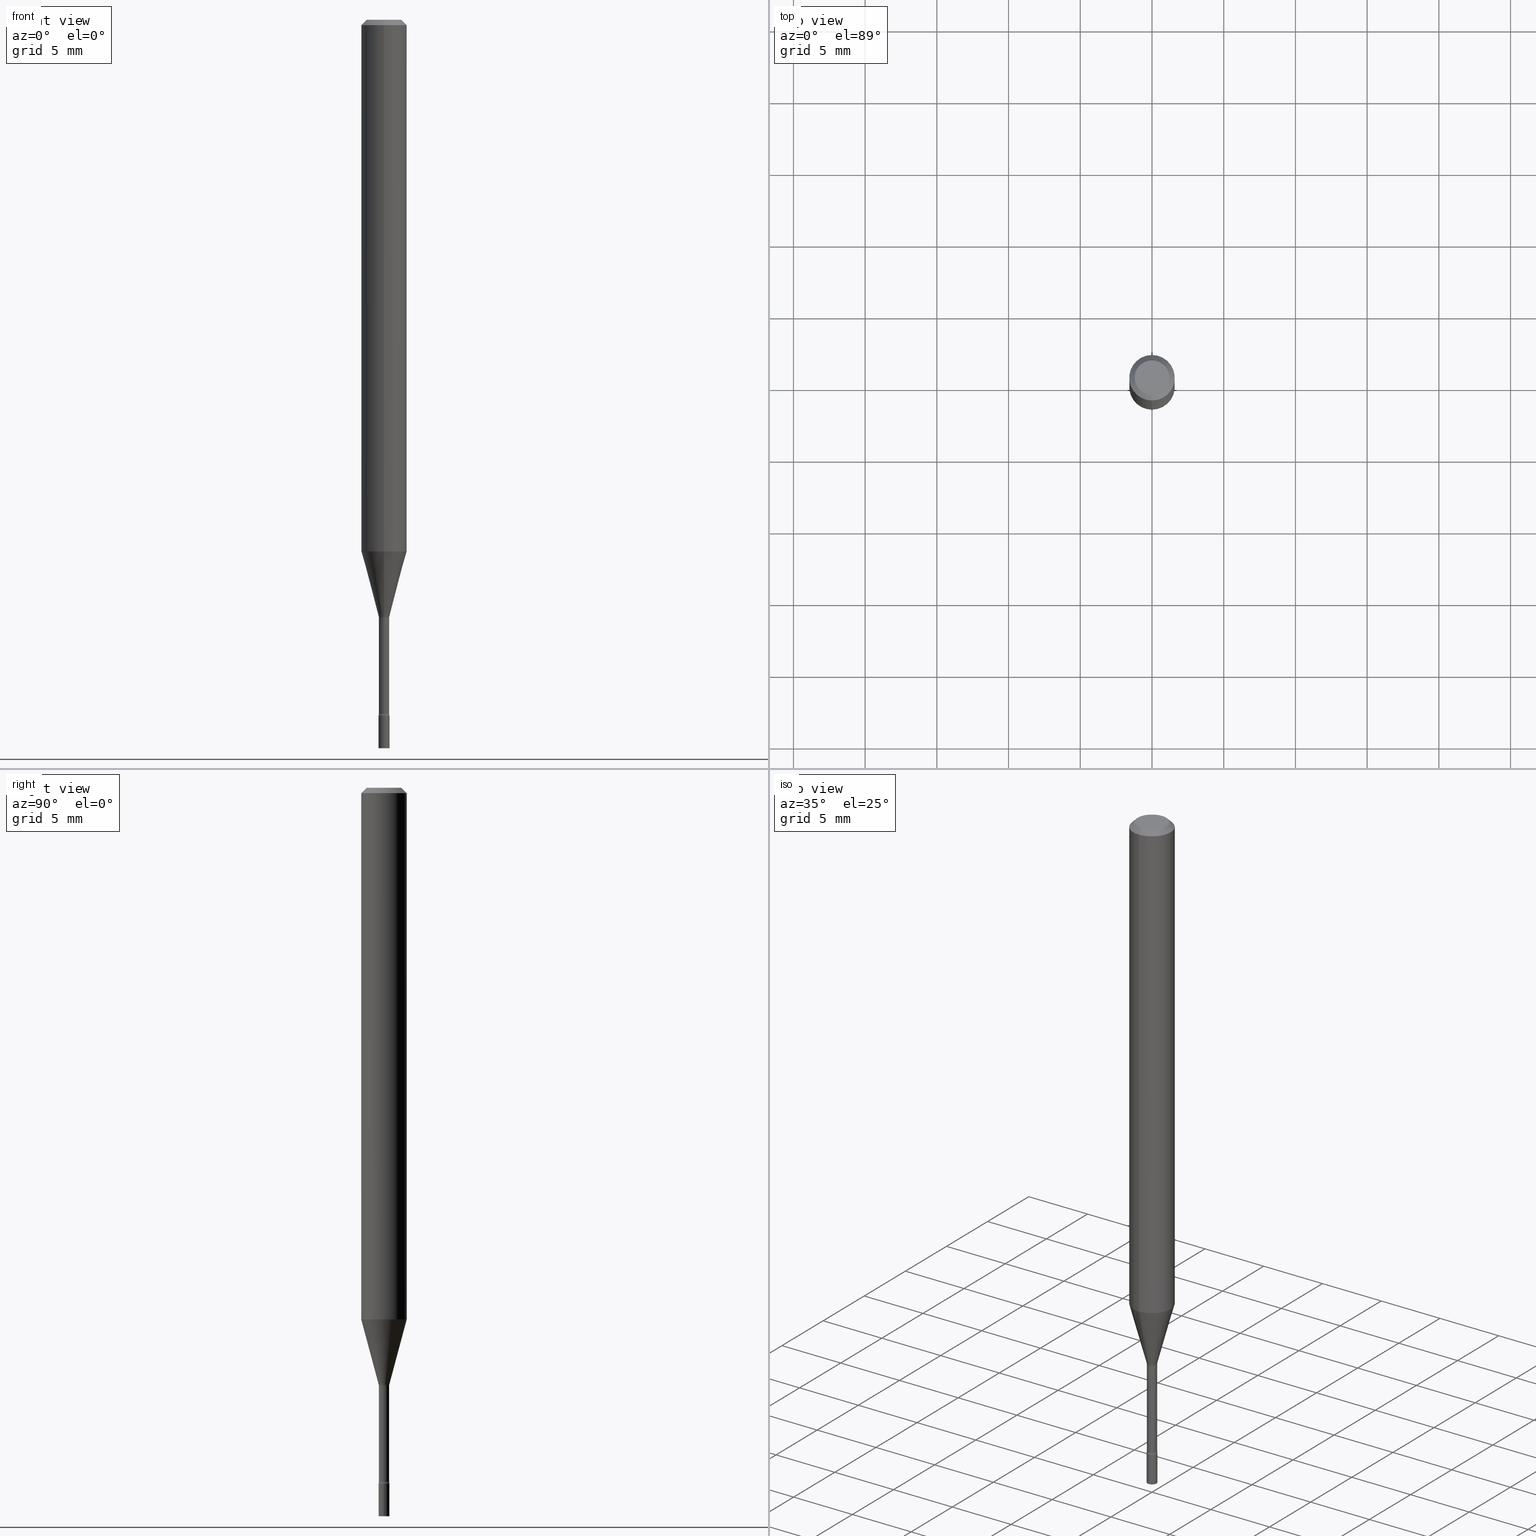
[diagram: canonical four-view strip — front | top / right | iso, engineering-drawing reading convention]
A machine part, canonical four-view strip (front | top / right | iso — engineering-drawing reading convention). The complete STEP part file that produces these views, byte-faithful:
ISO-10303-21;
HEADER;
FILE_DESCRIPTION (( 'STEP AP203' ),
    '1' );
FILE_NAME ('03431.STEP',
    '2024-03-08T21:21:12',
    ( '' ),
    ( '' ),
    'SwSTEP 2.0',
    'SolidWorks 2023',
    '' );
FILE_SCHEMA (( 'CONFIG_CONTROL_DESIGN' ));
ENDSEC;

DATA;
#1 = EDGE_CURVE ( 'NONE', #231, #144, #323, .T. ) ;
#2 = DIRECTION ( 'NONE',  ( -2.445538114681118856E-29, 3.491382085132104190E-15, 1.000000000000000000 ) ) ;
#3 = FACE_OUTER_BOUND ( 'NONE', #319, .T. ) ;
#4 = DIRECTION ( 'NONE',  ( -2.445538114681118856E-29, 3.491382085132104190E-15, 1.000000000000000000 ) ) ;
#5 = ADVANCED_FACE ( 'NONE', ( #302 ), #463, .F. ) ;
#6 = CIRCLE ( 'NONE', #324, 0.01499999999999999944 ) ;
#7 = APPLICATION_CONTEXT ( 'configuration controlled 3d designs of mechanical parts and assemblies' ) ;
#8 = APPROVAL_STATUS ( 'not_yet_approved' ) ;
#9 = EDGE_CURVE ( 'NONE', #383, #349, #507, .T. ) ;
#10 = AXIS2_PLACEMENT_3D ( 'NONE', #466, #346, #257 ) ;
#11 = CARTESIAN_POINT ( 'NONE',  ( 1.065814103640616653E-16, 0.01499999999999332249, -1.910000000000000142 ) ) ;
#12 = APPROVAL_ROLE ( '' ) ;
#13 = ORIENTED_EDGE ( 'NONE', *, *, #190, .T. ) ;
#14 =( LENGTH_UNIT ( ) NAMED_UNIT ( * ) SI_UNIT ( $, .METRE. ) );
#15 = DIRECTION ( 'NONE',  ( -2.445538114681118856E-29, 3.491382085132104190E-15, 1.000000000000000000 ) ) ;
#16 = CALENDAR_DATE ( 2024, 8, 3 ) ;
#17 = EDGE_LOOP ( 'NONE', ( #13, #114, #348, #449 ) ) ;
#18 = CARTESIAN_POINT ( 'NONE',  ( 4.015511926088179569E-29, -5.732761357189744798E-15, -1.641974787463811314 ) ) ;
#19 = EDGE_CURVE ( 'NONE', #337, #520, #46, .T. ) ;
#20 = VECTOR ( 'NONE', #230, 39.37007874015748143 ) ;
#21 = DIRECTION ( 'NONE',  ( -6.982962677686264344E-15, -1.000000000000000000, 0.000000000000000000 ) ) ;
#22 = LINE ( 'NONE', #182, #98 ) ;
#23 = UNCERTAINTY_MEASURE_WITH_UNIT (LENGTH_MEASURE( 1.000000000000000082E-05 ), #488, 'distance_accuracy_value', 'NONE');
#24 = EDGE_LOOP ( 'NONE', ( #391, #457, #234, #471 ) ) ;
#25 = EDGE_CURVE ( 'NONE', #337, #144, #22, .T. ) ;
#26 = FACE_OUTER_BOUND ( 'NONE', #106, .T. ) ;
#27 = ORIENTED_EDGE ( 'NONE', *, *, #25, .F. ) ;
#28 = CARTESIAN_POINT ( 'NONE',  ( 4.015398123285219661E-29, -5.732924329280836621E-15, -1.641974787463811314 ) ) ;
#29 = CLOSED_SHELL ( 'NONE', ( #438, #36, #491, #107 ) ) ;
#30 = CARTESIAN_POINT ( 'NONE',  ( -1.020288540047823140E-16, -0.01461111260566962632, -1.638092501787273392 ) ) ;
#31 = AXIS2_PLACEMENT_3D ( 'NONE', #517, #452, #240 ) ;
#32 = VERTEX_POINT ( 'NONE', #377 ) ;
#33 = DIRECTION ( 'NONE',  ( -6.982962677686265922E-15, -1.000000000000000000, 0.000000000000000000 ) ) ;
#34 = PERSON ( 'UNSPECIFIED', 'UNSPECIFIED', 'UNSPECIFIED', ('UNSPECIFIED'), ('UNSPECIFIED'), ('UNSPECIFIED') ) ;
#35 = DIRECTION ( 'NONE',  ( -2.445538114681118856E-29, 3.491382085132104190E-15, 1.000000000000000000 ) ) ;
#36 = ADVANCED_FACE ( 'NONE', ( #68 ), #138, .T. ) ;
#37 = EDGE_LOOP ( 'NONE', ( #396, #464, #41, #176 ) ) ;
#38 = CC_DESIGN_PERSON_AND_ORGANIZATION_ASSIGNMENT ( #174, #45, ( #432 ) ) ;
#39 = VECTOR ( 'NONE', #213, 39.37007874015748143 ) ;
#40 = AXIS2_PLACEMENT_3D ( 'NONE', #359, #321, #451 ) ;
#41 = ORIENTED_EDGE ( 'NONE', *, *, #291, .T. ) ;
#42 = DIRECTION ( 'NONE',  ( -2.445538114681118856E-29, 3.491382085132104190E-15, 1.000000000000000000 ) ) ;
#43 = CARTESIAN_POINT ( 'NONE',  ( 4.364351673553919652E-16, 0.06249999999999995143, -0.01500000000000024751 ) ) ;
#44 = DIRECTION ( 'NONE',  ( -2.445538114681118856E-29, 3.491382085132104190E-15, 1.000000000000000000 ) ) ;
#45 = PERSON_AND_ORGANIZATION_ROLE ( 'design_owner' ) ;
#46 = CIRCLE ( 'NONE', #197, 0.01499999999999999424 ) ;
#47 = CC_DESIGN_APPROVAL ( #429, ( #78 ) ) ;
#48 = CARTESIAN_POINT ( 'NONE',  ( -3.773273898774340269E-16, -0.04749999999999999362, 1.369220235646314872E-16 ) ) ;
#49 = CARTESIAN_POINT ( 'NONE',  ( 0.000000000000000000, 0.000000000000000000, 0.000000000000000000 ) ) ;
#50 = CC_DESIGN_DATE_AND_TIME_ASSIGNMENT ( #215, #308, ( #78 ) ) ;
#51 = CIRCLE ( 'NONE', #10, 0.01499999999999999944 ) ;
#52 = CIRCLE ( 'NONE', #249, 0.01409999999999999448 ) ;
#53 = DIRECTION ( 'NONE',  ( 6.982962677686265922E-15, 1.000000000000000000, -3.483106191921935554E-15 ) ) ;
#54 = COORDINATED_UNIVERSAL_TIME_OFFSET ( 5, 0, .BEHIND. ) ;
#55 = ORIENTED_EDGE ( 'NONE', *, *, #88, .T. ) ;
#56 = EDGE_CURVE ( 'NONE', #276, #81, #360, .T. ) ;
#57 = DIRECTION ( 'NONE',  ( -2.445538114681118856E-29, 3.491382085132104190E-15, 1.000000000000000000 ) ) ;
#58 = MANIFOLD_SOLID_BREP ( 'Body-Move/Copy2[2]', #408 ) ;
#59 = ORIENTED_EDGE ( 'NONE', *, *, #246, .F. ) ;
#60 = DIRECTION ( 'NONE',  ( 7.105427357600999492E-15, 1.000000000000000000, 0.000000000000000000 ) ) ;
#61 = DIRECTION ( 'NONE',  ( -4.851104656540964275E-15, -0.7071067811865500152, -0.7071067811865450192 ) ) ;
#62 = SECURITY_CLASSIFICATION_LEVEL ( 'unclassified' ) ;
#63 = AXIS2_PLACEMENT_3D ( 'NONE', #262, #248, #53 ) ;
#64 = AXIS2_PLACEMENT_3D ( 'NONE', #511, #395, #173 ) ;
#65 = DIRECTION ( 'NONE',  ( 7.105427357601001859E-15, 1.000000000000000000, 0.000000000000000000 ) ) ;
#66 = COORDINATED_UNIVERSAL_TIME_OFFSET ( 5, 0, .BEHIND. ) ;
#67 = ADVANCED_FACE ( 'NONE', ( #26 ), #388, .F. ) ;
#68 = FACE_OUTER_BOUND ( 'NONE', #434, .T. ) ;
#69 = ORIENTED_EDGE ( 'NONE', *, *, #175, .F. ) ;
#70 = CARTESIAN_POINT ( 'NONE',  ( -2.032042139206301791E-16, -0.02910000000000572892, -1.641974787463811314 ) ) ;
#71 = LINE ( 'NONE', #439, #390 ) ;
#72 = EDGE_LOOP ( 'NONE', ( #430, #423, #495, #345 ) ) ;
#73 = AXIS2_PLACEMENT_3D ( 'NONE', #499, #221, #177 ) ;
#74 = CARTESIAN_POINT ( 'NONE',  ( 0.01499999999999999944, -1.047444401652940105E-16, 7.314265163693904390E-31 ) ) ;
#75 = ORGANIZATION ( 'UNSPECIFIED', 'UNSPECIFIED', '' ) ;
#76 = EDGE_LOOP ( 'NONE', ( #400, #120, #225, #266 ) ) ;
#77 = DIRECTION ( 'NONE',  ( 1.839019923739597160E-15, 0.2588190451025245142, 0.9659258262890673130 ) ) ;
#78 = PRODUCT_DEFINITION ( 'UNKNOWN', '', #118, #160 ) ;
#79 = CARTESIAN_POINT ( 'NONE',  ( 4.006017648494126314E-29, -5.719206814529315769E-15, -1.638092501787273392 ) ) ;
#80 = ORIENTED_EDGE ( 'NONE', *, *, #149, .T. ) ;
#81 = VERTEX_POINT ( 'NONE', #304 ) ;
#82 = AXIS2_PLACEMENT_3D ( 'NONE', #109, #467, #472 ) ;
#83 = CIRCLE ( 'NONE', #172, 0.01499999999999999944 ) ;
#84 = CARTESIAN_POINT ( 'NONE',  ( 0.000000000000000000, 0.000000000000000000, 0.000000000000000000 ) ) ;
#85 = CARTESIAN_POINT ( 'NONE',  ( 0.000000000000000000, 0.000000000000000000, 0.000000000000000000 ) ) ;
#86 = DIRECTION ( 'NONE',  ( -2.445538114681118856E-29, 3.491382085132104190E-15, 1.000000000000000000 ) ) ;
#87 = APPLICATION_PROTOCOL_DEFINITION ( 'international standard', 'config_control_design', 1994, #137 ) ;
#88 = EDGE_CURVE ( 'NONE', #349, #383, #328, .T. ) ;
#89 = CYLINDRICAL_SURFACE ( 'NONE', #470, 0.01499999999999999944 ) ;
#90 = CIRCLE ( 'NONE', #356, 0.01410000000000004479 ) ;
#91 = CALENDAR_DATE ( 2024, 8, 3 ) ;
#92 = CC_DESIGN_PERSON_AND_ORGANIZATION_ASSIGNMENT ( #334, #223, ( #476 ) ) ;
#93 = CARTESIAN_POINT ( 'NONE',  ( 3.316907271900976096E-16, 0.04749999999999999362, -1.802999617833466869E-16 ) ) ;
#94 = EDGE_LOOP ( 'NONE', ( #263, #55, #135, #216 ) ) ;
#95 = CARTESIAN_POINT ( 'NONE',  ( -1.020288540047823140E-16, -0.01461111260566962632, -1.638092501787273392 ) ) ;
#96 = DIRECTION ( 'NONE',  ( -2.445538114681118576E-29, 3.491382085132104585E-15, 1.000000000000000000 ) ) ;
#97 = CYLINDRICAL_SURFACE ( 'NONE', #307, 0.01410000000000002050 ) ;
#98 = VECTOR ( 'NONE', #502, 39.37007874015748143 ) ;
#99 = ORIENTED_EDGE ( 'NONE', *, *, #115, .T. ) ;
#100 = ADVANCED_FACE ( 'NONE', ( #494 ), #518, .T. ) ;
#101 = DIRECTION ( 'NONE',  ( -6.982962677686265922E-15, -1.000000000000000000, 4.370956789862821150E-15 ) ) ;
#102 = APPROVAL_DATE_TIME ( #303, #500 ) ;
#103 = ORIENTED_EDGE ( 'NONE', *, *, #9, .T. ) ;
#104 = ADVANCED_FACE ( 'NONE', ( #283 ), #154, .T. ) ;
#105 = CALENDAR_DATE ( 2024, 8, 3 ) ;
#106 = EDGE_LOOP ( 'NONE', ( #480, #443, #497, #376 ) ) ;
#107 = ADVANCED_FACE ( 'NONE', ( #474 ), #513, .T. ) ;
#108 = CIRCLE ( 'NONE', #309, 0.06250000000000000000 ) ;
#109 = CARTESIAN_POINT ( 'NONE',  ( 3.568941879278567028E-29, -5.095213877627770922E-15, -1.459368740913666640 ) ) ;
#110 = CARTESIAN_POINT ( 'NONE',  ( -4.287811248607203282E-16, -0.06250000000000005551, -0.01499999999999981209 ) ) ;
#111 = EDGE_LOOP ( 'NONE', ( #27, #226, #516, #258 ) ) ;
#112 = ORIENTED_EDGE ( 'NONE', *, *, #167, .F. ) ;
#113 = DIRECTION ( 'NONE',  ( 1.000000000000000000, -6.982962677686268288E-15, 0.000000000000000000 ) ) ;
#114 = ORIENTED_EDGE ( 'NONE', *, *, #306, .T. ) ;
#115 = EDGE_CURVE ( 'NONE', #231, #276, #282, .T. ) ;
#116 = ORIENTED_EDGE ( 'NONE', *, *, #9, .F. ) ;
#117 = APPROVAL_PERSON_ORGANIZATION ( #132, #500, #12 ) ;
#118 = PRODUCT_DEFINITION_FORMATION_WITH_SPECIFIED_SOURCE ( 'ANY', '', #432, .NOT_KNOWN. ) ;
#119 = CARTESIAN_POINT ( 'NONE',  ( 3.668307172021685729E-31, -5.237073127698167330E-17, -0.01500000000000003067 ) ) ;
#120 = ORIENTED_EDGE ( 'NONE', *, *, #417, .T. ) ;
#121 = CARTESIAN_POINT ( 'NONE',  ( 3.840629472727447874E-16, 0.04749999999999999362, -1.947592745229183872E-16 ) ) ;
#122 = CARTESIAN_POINT ( 'NONE',  ( 4.440892098500625669E-16, 0.06250000000000000000, -2.182113803207564873E-16 ) ) ;
#123 = EDGE_CURVE ( 'NONE', #141, #437, #51, .T. ) ;
#124 = AXIS2_PLACEMENT_3D ( 'NONE', #406, #44, #487 ) ;
#125 = CARTESIAN_POINT ( 'NONE',  ( -9.845977375537648674E-17, -0.01410000000000002050, 4.922848740036274036E-17 ) ) ;
#126 = APPROVAL_ROLE ( '' ) ;
#127 = COORDINATED_UNIVERSAL_TIME_OFFSET ( 5, 0, .BEHIND. ) ;
#128 = AXIS2_PLACEMENT_3D ( 'NONE', #150, #318, #300 ) ;
#129 = AXIS2_PLACEMENT_3D ( 'NONE', #514, #274, #146 ) ;
#130 = EDGE_CURVE ( 'NONE', #144, #81, #427, .T. ) ;
#131 = ADVANCED_FACE ( 'NONE', ( #142 ), #134, .F. ) ;
#132 = PERSON_AND_ORGANIZATION ( #34, #75 ) ;
#133 = CARTESIAN_POINT ( 'NONE',  ( 4.006017648494126314E-29, -5.719206814529315769E-15, -1.638092501787273392 ) ) ;
#134 = TOROIDAL_SURFACE ( 'NONE', #339, 0.02910000000000003903, 0.01499999999999999424 ) ;
#135 = ORIENTED_EDGE ( 'NONE', *, *, #175, .T. ) ;
#136 = CARTESIAN_POINT ( 'NONE',  ( 0.000000000000000000, 0.000000000000000000, 0.000000000000000000 ) ) ;
#137 = APPLICATION_CONTEXT ( 'configuration controlled 3d designs of mechanical parts and assemblies' ) ;
#138 = PLANE ( 'NONE',  #153 ) ;
#139 = DIRECTION ( 'NONE',  ( -2.438088387897960049E-29, 3.491481338843145188E-15, 1.000000000000000000 ) ) ;
#140 = PERSON_AND_ORGANIZATION_ROLE ( 'creator' ) ;
#141 = VERTEX_POINT ( 'NONE', #416 ) ;
#142 = FACE_OUTER_BOUND ( 'NONE', #24, .T. ) ;
#143 = CIRCLE ( 'NONE', #410, 0.01499999999999999944 ) ;
#144 = VERTEX_POINT ( 'NONE', #199 ) ;
#145 = LOCAL_TIME ( 16, 21, 12.00000000000000000, #66 ) ;
#146 = DIRECTION ( 'NONE',  ( 6.982962677686265922E-15, 1.000000000000000000, -3.483106191921935554E-15 ) ) ;
#147 = ORIENTED_EDGE ( 'NONE', *, *, #350, .F. ) ;
#148 = ORIENTED_EDGE ( 'NONE', *, *, #123, .T. ) ;
#149 = EDGE_CURVE ( 'NONE', #349, #315, #444, .T. ) ;
#150 = CARTESIAN_POINT ( 'NONE',  ( 1.047444401653428952E-16, 0.01499999999999301718, -2.000000000000000000 ) ) ;
#151 = DIRECTION ( 'NONE',  ( -6.982962677686266711E-15, -1.000000000000000000, 0.000000000000000000 ) ) ;
#152 = ORIENTED_EDGE ( 'NONE', *, *, #88, .F. ) ;
#153 = AXIS2_PLACEMENT_3D ( 'NONE', #385, #139, #506 ) ;
#154 = CYLINDRICAL_SURFACE ( 'NONE', #469, 0.01410000000000002050 ) ;
#155 = AXIS2_PLACEMENT_3D ( 'NONE', #79, #2, #447 ) ;
#156 = DIRECTION ( 'NONE',  ( -2.445468806185136597E-29, 3.491481338843145583E-15, 1.000000000000000000 ) ) ;
#157 = ORIENTED_EDGE ( 'NONE', *, *, #246, .T. ) ;
#158 = ADVANCED_FACE ( 'NONE', ( #259 ), #496, .T. ) ;
#159 = DIRECTION ( 'NONE',  ( -2.445538114681118856E-29, 3.491382085132104190E-15, 1.000000000000000000 ) ) ;
#160 = DESIGN_CONTEXT ( 'detailed design', #7, 'design' ) ;
#161 = DIRECTION ( 'NONE',  ( -2.445538114681118856E-29, 3.491382085132104190E-15, 1.000000000000000000 ) ) ;
#162 = FACE_OUTER_BOUND ( 'NONE', #37, .T. ) ;
#163 = FACE_OUTER_BOUND ( 'NONE', #265, .T. ) ;
#164 = VECTOR ( 'NONE', #96, 39.37007874015748143 ) ;
#165 = DIRECTION ( 'NONE',  ( -6.982962677686265922E-15, -1.000000000000000000, 3.483106191921935554E-15 ) ) ;
#166 = LOCAL_TIME ( 16, 21, 12.00000000000000000, #219 ) ;
#167 = EDGE_CURVE ( 'NONE', #271, #373, #295, .T. ) ;
#168 = PLANE ( 'NONE',  #347 ) ;
#169 = ADVANCED_FACE ( 'NONE', ( #433 ), #401, .T. ) ;
#170 = APPROVAL_DATE_TIME ( #287, #429 ) ;
#171 = APPLICATION_PROTOCOL_DEFINITION ( 'international standard', 'config_control_design', 1994, #7 ) ;
#172 = AXIS2_PLACEMENT_3D ( 'NONE', #519, #156, #479 ) ;
#173 = DIRECTION ( 'NONE',  ( -6.982962677686265922E-15, -1.000000000000000000, 3.483106191921935554E-15 ) ) ;
#174 = PERSON_AND_ORGANIZATION ( #34, #75 ) ;
#175 = EDGE_CURVE ( 'NONE', #383, #373, #460, .T. ) ;
#176 = ORIENTED_EDGE ( 'NONE', *, *, #389, .F. ) ;
#177 = DIRECTION ( 'NONE',  ( -6.982962677686265922E-15, -1.000000000000000000, 0.000000000000000000 ) ) ;
#178 = EDGE_LOOP ( 'NONE', ( #59, #99, #227, #152 ) ) ;
#179 = AXIS2_PLACEMENT_3D ( 'NONE', #28, #254, #424 ) ;
#180 = CC_DESIGN_APPROVAL ( #500, ( #118 ) ) ;
#181 = ADVANCED_FACE ( 'NONE', ( #371 ), #97, .T. ) ;
#182 = CARTESIAN_POINT ( 'NONE',  ( 1.001865257421742472E-16, 0.01410000000000002050, -4.922848740036274036E-17 ) ) ;
#183 = APPROVAL_DATE_TIME ( #380, #207 ) ;
#184 = DIRECTION ( 'NONE',  ( -1.807323732225326984E-15, -0.2588190451025177419, 0.9659258262890690894 ) ) ;
#185 = ORIENTED_EDGE ( 'NONE', *, *, #56, .F. ) ;
#186 = ORIENTED_EDGE ( 'NONE', *, *, #190, .F. ) ;
#187 = CIRCLE ( 'NONE', #155, 0.01461111260566390693 ) ;
#188 = CC_DESIGN_APPROVAL ( #207, ( #476 ) ) ;
#189 = LINE ( 'NONE', #74, #20 ) ;
#190 = EDGE_CURVE ( 'NONE', #253, #399, #316, .T. ) ;
#191 = DIRECTION ( 'NONE',  ( -6.982962677686265922E-15, -1.000000000000000000, 3.491382085132104190E-15 ) ) ;
#192 = EDGE_LOOP ( 'NONE', ( #112, #475, #310, #420 ) ) ;
#193 = DIRECTION ( 'NONE',  ( -6.982962677686265922E-15, -1.000000000000000000, 0.000000000000000000 ) ) ;
#194 = CARTESIAN_POINT ( 'NONE',  ( 1.047444401653407012E-16, 0.01499999999999333117, -1.910000000000000142 ) ) ;
#195 = DIRECTION ( 'NONE',  ( -2.445538114681118856E-29, 3.491382085132104190E-15, 1.000000000000000000 ) ) ;
#196 = EDGE_LOOP ( 'NONE', ( #103, #80, #305, #69 ) ) ;
#197 = AXIS2_PLACEMENT_3D ( 'NONE', #387, #468, #60 ) ;
#198 = VECTOR ( 'NONE', #332, 39.37007874015748143 ) ;
#199 = CARTESIAN_POINT ( 'NONE',  ( 1.001865257422207777E-16, 0.01409999999999425949, -1.641974787463811314 ) ) ;
#200 = FACE_OUTER_BOUND ( 'NONE', #17, .T. ) ;
#201 = DIRECTION ( 'NONE',  ( -6.982962677686266711E-15, -1.000000000000000000, 0.000000000000000000 ) ) ;
#202 = CARTESIAN_POINT ( 'NONE',  ( 7.072160083343390127E-46, -1.009659709245263402E-31, -2.891862547914347468E-17 ) ) ;
#203 = ADVANCED_FACE ( 'NONE', ( #163 ), #366, .T. ) ;
#204 = VECTOR ( 'NONE', #61, 39.37007874015748143 ) ;
#205 = APPROVAL_PERSON_ORGANIZATION ( #369, #429, #126 ) ;
#206 = DIRECTION ( 'NONE',  ( 1.000000000000000000, -6.982962677686268288E-15, 0.000000000000000000 ) ) ;
#207 = APPROVAL ( #214, 'UNSPECIFIED' ) ;
#208 = AXIS2_PLACEMENT_3D ( 'NONE', #222, #382, #101 ) ;
#209 = AXIS2_PLACEMENT_3D ( 'NONE', #84, #161, #270 ) ;
#210 = APPROVAL_ROLE ( '' ) ;
#211 = CARTESIAN_POINT ( 'NONE',  ( -0.01499999999999999944, 1.065814103640150239E-16, -7.378402635382358533E-31 ) ) ;
#212 = CARTESIAN_POINT ( 'NONE',  ( 4.658330447976159131E-29, -6.650861294217740998E-15, -1.904882383367230592 ) ) ;
#213 = DIRECTION ( 'NONE',  ( -2.445538114681118576E-29, 3.491382085132104585E-15, 1.000000000000000000 ) ) ;
#214 = APPROVAL_STATUS ( 'not_yet_approved' ) ;
#215 = DATE_AND_TIME ( #245, #340 ) ;
#216 = ORIENTED_EDGE ( 'NONE', *, *, #301, .F. ) ;
#217 = DIRECTION ( 'NONE',  ( -1.000000000000000000, 6.982962677686265922E-15, -4.883557194083112340E-29 ) ) ;
#218 = DIRECTION ( 'NONE',  ( -6.982962677686265133E-15, -1.000000000000000000, 3.491382085132104190E-15 ) ) ;
#219 = COORDINATED_UNIVERSAL_TIME_OFFSET ( 5, 0, .BEHIND. ) ;
#220 = CIRCLE ( 'NONE', #124, 0.04749999999999999362 ) ;
#221 = DIRECTION ( 'NONE',  ( -2.445538114681118856E-29, 3.491382085132104190E-15, 1.000000000000000000 ) ) ;
#222 = CARTESIAN_POINT ( 'NONE',  ( 3.568941879278567028E-29, -5.095213877627770922E-15, -1.459368740913666640 ) ) ;
#223 = PERSON_AND_ORGANIZATION_ROLE ( 'classification_officer' ) ;
#224 = EDGE_LOOP ( 'NONE', ( #504, #473, #462, #185 ) ) ;
#225 = ORIENTED_EDGE ( 'NONE', *, *, #277, .T. ) ;
#226 = ORIENTED_EDGE ( 'NONE', *, *, #239, .T. ) ;
#227 = ORIENTED_EDGE ( 'NONE', *, *, #336, .T. ) ;
#228 = CARTESIAN_POINT ( 'NONE',  ( 0.01499999999999999944, -7.087707117851585324E-15, -2.000000000000000000 ) ) ;
#229 = AXIS2_PLACEMENT_3D ( 'NONE', #133, #195, #33 ) ;
#230 = DIRECTION ( 'NONE',  ( -2.445468806185136877E-29, 3.491481338843145188E-15, 1.000000000000000000 ) ) ;
#231 = VERTEX_POINT ( 'NONE', #268 ) ;
#232 = ORIENTED_EDGE ( 'NONE', *, *, #284, .F. ) ;
#233 = DIRECTION ( 'NONE',  ( -2.445468806185136597E-29, 3.491481338843145583E-15, 1.000000000000000000 ) ) ;
#234 = ORIENTED_EDGE ( 'NONE', *, *, #389, .T. ) ;
#235 = CARTESIAN_POINT ( 'NONE',  ( 4.440892098500981149E-16, 0.06249999999999489991, -1.459368740913666862 ) ) ;
#236 = DIRECTION ( 'NONE',  ( -2.445538114681118856E-29, 3.491382085132104190E-15, 1.000000000000000000 ) ) ;
#237 = CARTESIAN_POINT ( 'NONE',  ( -4.364351673553912750E-16, -0.06250000000000005551, -0.01499999999999981209 ) ) ;
#238 = DIRECTION ( 'NONE',  ( -2.445468806185136597E-29, 3.491481338843145583E-15, 1.000000000000000000 ) ) ;
#239 = EDGE_CURVE ( 'NONE', #337, #32, #331, .T. ) ;
#240 = DIRECTION ( 'NONE',  ( -6.982962677686265922E-15, -1.000000000000000000, 3.491382085132103796E-15 ) ) ;
#241 = ADVANCED_BREP_SHAPE_REPRESENTATION ( '03431', ( #392, #58, #455 ), #508 ) ;
#242 = CARTESIAN_POINT ( 'NONE',  ( 4.658462472509174243E-29, -6.650672227572096016E-15, -1.904882383367231036 ) ) ;
#243 = AXIS2_PLACEMENT_3D ( 'NONE', #421, #431, #65 ) ;
#244 = DIRECTION ( 'NONE',  ( 1.000000000000000000, -6.982962677686267499E-15, 4.876176775795936353E-29 ) ) ;
#245 = CALENDAR_DATE ( 2024, 8, 3 ) ;
#246 = EDGE_CURVE ( 'NONE', #231, #349, #71, .T. ) ;
#247 = DIRECTION ( 'NONE',  ( -2.445468806185136597E-29, 3.491481338843145583E-15, 1.000000000000000000 ) ) ;
#248 = DIRECTION ( 'NONE',  ( 2.445538114681118856E-29, -3.491382085132104190E-15, -1.000000000000000000 ) ) ;
#249 = AXIS2_PLACEMENT_3D ( 'NONE', #357, #86, #515 ) ;
#250 = ORIENTED_EDGE ( 'NONE', *, *, #167, .T. ) ;
#251 = CARTESIAN_POINT ( 'NONE',  ( 4.015398123285219661E-29, -5.732924329280836621E-15, -1.641974787463811314 ) ) ;
#252 = CARTESIAN_POINT ( 'NONE',  ( 4.006017648494126314E-29, -5.719206814529315769E-15, -1.638092501787273392 ) ) ;
#253 = VERTEX_POINT ( 'NONE', #228 ) ;
#254 = DIRECTION ( 'NONE',  ( -2.445538114681118856E-29, 3.491382085132104190E-15, 1.000000000000000000 ) ) ;
#255 = DIRECTION ( 'NONE',  ( -2.445538114681118856E-29, 3.491382085132104190E-15, 1.000000000000000000 ) ) ;
#256 = PERSON_AND_ORGANIZATION ( #34, #75 ) ;
#257 = DIRECTION ( 'NONE',  ( 1.000000000000000000, -6.982962677686268288E-15, 0.000000000000000000 ) ) ;
#258 = ORIENTED_EDGE ( 'NONE', *, *, #130, .F. ) ;
#259 = FACE_OUTER_BOUND ( 'NONE', #436, .T. ) ;
#260 = PERSON_AND_ORGANIZATION ( #34, #75 ) ;
#261 = TOROIDAL_SURFACE ( 'NONE', #40, 0.02910000000000003903, 0.01499999999999999424 ) ;
#262 = CARTESIAN_POINT ( 'NONE',  ( 3.668307172021685729E-31, -5.237073127698167330E-17, -0.01500000000000003067 ) ) ;
#263 = ORIENTED_EDGE ( 'NONE', *, *, #149, .F. ) ;
#264 = EDGE_CURVE ( 'NONE', #425, #271, #220, .T. ) ;
#265 = EDGE_LOOP ( 'NONE', ( #147, #250, #446, #510 ) ) ;
#266 = ORIENTED_EDGE ( 'NONE', *, *, #123, .F. ) ;
#267 = PRODUCT_DEFINITION_SHAPE ( 'NONE', 'NONE',  #78 ) ;
#268 = CARTESIAN_POINT ( 'NONE',  ( 2.739537045417059006E-16, 0.01461111260565818581, -1.638092501787273392 ) ) ;
#269 = CYLINDRICAL_SURFACE ( 'NONE', #31, 0.06250000000000000000 ) ;
#270 = DIRECTION ( 'NONE',  ( -6.982962677686265922E-15, -1.000000000000000000, 3.491382085132103796E-15 ) ) ;
#271 = VERTEX_POINT ( 'NONE', #48 ) ;
#272 = AXIS2_PLACEMENT_3D ( 'NONE', #252, #57, #342 ) ;
#273 = LOCAL_TIME ( 16, 21, 12.00000000000000000, #289 ) ;
#274 = DIRECTION ( 'NONE',  ( 2.445538114681118856E-29, -3.491382085132104190E-15, -1.000000000000000000 ) ) ;
#275 = DIRECTION ( 'NONE',  ( -1.000000000000000000, 6.982962677686265922E-15, -4.883557194083112340E-29 ) ) ;
#276 = VERTEX_POINT ( 'NONE', #30 ) ;
#277 = EDGE_CURVE ( 'NONE', #253, #437, #189, .T. ) ;
#278 = CARTESIAN_POINT ( 'NONE',  ( 4.670845419813611528E-29, -6.668729357190407901E-15, -1.910000000000000142 ) ) ;
#279 = CYLINDRICAL_SURFACE ( 'NONE', #298, 0.01499999999999999944 ) ;
#280 = CYLINDRICAL_SURFACE ( 'NONE', #209, 0.06250000000000000000 ) ;
#281 = DIRECTION ( 'NONE',  ( -2.445538114681118296E-29, 3.491382085132104585E-15, 1.000000000000000000 ) ) ;
#282 = CIRCLE ( 'NONE', #73, 0.01461111260566390693 ) ;
#283 = FACE_OUTER_BOUND ( 'NONE', #72, .T. ) ;
#284 = EDGE_CURVE ( 'NONE', #299, #520, #290, .T. ) ;
#285 =( NAMED_UNIT ( * ) SI_UNIT ( $, .STERADIAN. ) SOLID_ANGLE_UNIT ( ) );
#286 = CARTESIAN_POINT ( 'NONE',  ( -4.364351673553560721E-16, -0.06250000000000510703, -1.459368740913666196 ) ) ;
#287 = DATE_AND_TIME ( #91, #273 ) ;
#288 = AXIS2_PLACEMENT_3D ( 'NONE', #18, #505, #381 ) ;
#289 = COORDINATED_UNIVERSAL_TIME_OFFSET ( 5, 0, .BEHIND. ) ;
#290 = CIRCLE ( 'NONE', #361, 0.01499999999999999944 ) ;
#291 = EDGE_CURVE ( 'NONE', #520, #299, #6, .T. ) ;
#292 = DIRECTION ( 'NONE',  ( 1.000000000000000000, 0.000000000000000000, 0.000000000000000000 ) ) ;
#293 = ORIENTED_EDGE ( 'NONE', *, *, #426, .T. ) ;
#294 = CARTESIAN_POINT ( 'NONE',  ( 4.440892098500985093E-16, 0.06249999999999995143, -0.01500000000000024751 ) ) ;
#295 = LINE ( 'NONE', #110, #204 ) ;
#296 = DATE_AND_TIME ( #503, #145 ) ;
#297 = ADVANCED_FACE ( 'NONE', ( #363 ), #280, .T. ) ;
#298 = AXIS2_PLACEMENT_3D ( 'NONE', #440, #481, #397 ) ;
#299 = VERTEX_POINT ( 'NONE', #386 ) ;
#300 = DIRECTION ( 'NONE',  ( -1.000000000000000000, 6.982962677686265922E-15, -4.876176775795935793E-29 ) ) ;
#301 = EDGE_CURVE ( 'NONE', #315, #373, #317, .T. ) ;
#302 = FACE_OUTER_BOUND ( 'NONE', #224, .T. ) ;
#303 = DATE_AND_TIME ( #16, #409 ) ;
#304 = CARTESIAN_POINT ( 'NONE',  ( -9.845977375533614390E-17, -0.01410000000000572774, -1.641974787463811314 ) ) ;
#305 = ORIENTED_EDGE ( 'NONE', *, *, #384, .F. ) ;
#306 = EDGE_CURVE ( 'NONE', #399, #141, #374, .T. ) ;
#307 = AXIS2_PLACEMENT_3D ( 'NONE', #136, #255, #218 ) ;
#308 = DATE_TIME_ROLE ( 'creation_date' ) ;
#309 = AXIS2_PLACEMENT_3D ( 'NONE', #119, #4, #165 ) ;
#310 = ORIENTED_EDGE ( 'NONE', *, *, #375, .T. ) ;
#311 = ORIENTED_EDGE ( 'NONE', *, *, #336, .F. ) ;
#312 = ORIENTED_EDGE ( 'NONE', *, *, #350, .T. ) ;
#313 = EDGE_LOOP ( 'NONE', ( #367, #312 ) ) ;
#314 = PLANE ( 'NONE',  #379 ) ;
#315 = VERTEX_POINT ( 'NONE', #294 ) ;
#316 = CIRCLE ( 'NONE', #364, 0.01499999999999999944 ) ;
#317 = CIRCLE ( 'NONE', #64, 0.06250000000000000000 ) ;
#318 = DIRECTION ( 'NONE',  ( 2.438088387897960049E-29, -3.491481338843145188E-15, -1.000000000000000000 ) ) ;
#319 = EDGE_LOOP ( 'NONE', ( #232, #354 ) ) ;
#320 = DIRECTION ( 'NONE',  ( -2.445538114681118856E-29, 3.491382085132104190E-15, 1.000000000000000000 ) ) ;
#321 = DIRECTION ( 'NONE',  ( -2.445538114681118856E-29, 3.491382085132104190E-15, 1.000000000000000000 ) ) ;
#322 = DIMENSIONAL_EXPONENTS ( 1.000000000000000000, 0.000000000000000000, 0.000000000000000000, 0.000000000000000000, 0.000000000000000000, 0.000000000000000000, 0.000000000000000000 ) ;
#323 = CIRCLE ( 'NONE', #243, 0.01500000000000009139 ) ;
#324 = AXIS2_PLACEMENT_3D ( 'NONE', #351, #42, #435 ) ;
#325 = APPROVAL_PERSON_ORGANIZATION ( #260, #207, #210 ) ;
#326 = CARTESIAN_POINT ( 'NONE',  ( -2.032042139206240161E-16, -0.02910000000000668996, -1.904882383367230592 ) ) ;
#327 = PERSON_AND_ORGANIZATION_ROLE ( 'creator' ) ;
#328 = CIRCLE ( 'NONE', #82, 0.06250000000000000000 ) ;
#329 = CC_DESIGN_PERSON_AND_ORGANIZATION_ASSIGNMENT ( #414, #493, ( #118 ) ) ;
#330 = FACE_OUTER_BOUND ( 'NONE', #76, .T. ) ;
#331 = CIRCLE ( 'NONE', #442, 0.01410000000000004479 ) ;
#332 = DIRECTION ( 'NONE',  ( -2.445468806185136877E-29, 3.491481338843145188E-15, 1.000000000000000000 ) ) ;
#333 = FACE_OUTER_BOUND ( 'NONE', #313, .T. ) ;
#334 = PERSON_AND_ORGANIZATION ( #34, #75 ) ;
#335 = DIRECTION ( 'NONE',  ( -2.445538114681118856E-29, 3.491382085132104190E-15, 1.000000000000000000 ) ) ;
#336 = EDGE_CURVE ( 'NONE', #276, #383, #458, .T. ) ;
#337 = VERTEX_POINT ( 'NONE', #344 ) ;
#338 = DIRECTION ( 'NONE',  ( -2.445538114681118576E-29, 3.491382085132104585E-15, 1.000000000000000000 ) ) ;
#339 = AXIS2_PLACEMENT_3D ( 'NONE', #212, #15, #191 ) ;
#340 = LOCAL_TIME ( 16, 21, 12.00000000000000000, #127 ) ;
#341 = EDGE_CURVE ( 'NONE', #32, #337, #90, .T. ) ;
#342 = DIRECTION ( 'NONE',  ( -6.982962677686265922E-15, -1.000000000000000000, 0.000000000000000000 ) ) ;
#343 = SHAPE_DEFINITION_REPRESENTATION ( #267, #241 ) ;
#344 = CARTESIAN_POINT ( 'NONE',  ( 1.033839680531413078E-16, 0.01409999999999339559, -1.904882383367231036 ) ) ;
#345 = ORIENTED_EDGE ( 'NONE', *, *, #486, .F. ) ;
#346 = DIRECTION ( 'NONE',  ( -2.445468806185136597E-29, 3.491481338843145583E-15, 1.000000000000000000 ) ) ;
#347 = AXIS2_PLACEMENT_3D ( 'NONE', #93, #413, #407 ) ;
#348 = ORIENTED_EDGE ( 'NONE', *, *, #426, .F. ) ;
#349 = VERTEX_POINT ( 'NONE', #235 ) ;
#350 = EDGE_CURVE ( 'NONE', #271, #425, #428, .T. ) ;
#351 = CARTESIAN_POINT ( 'NONE',  ( 4.670977799040937506E-29, -6.668539782602318933E-15, -1.910000000000000142 ) ) ;
#352 = ORIENTED_EDGE ( 'NONE', *, *, #412, .T. ) ;
#353 = ADVANCED_FACE ( 'NONE', ( #3 ), #314, .F. ) ;
#354 = ORIENTED_EDGE ( 'NONE', *, *, #291, .F. ) ;
#355 = AXIS2_PLACEMENT_3D ( 'NONE', #70, #217, #21 ) ;
#356 = AXIS2_PLACEMENT_3D ( 'NONE', #415, #320, #201 ) ;
#357 = CARTESIAN_POINT ( 'NONE',  ( 4.015511926088179569E-29, -5.732761357189744798E-15, -1.641974787463811314 ) ) ;
#358 = FACE_OUTER_BOUND ( 'NONE', #196, .T. ) ;
#359 = CARTESIAN_POINT ( 'NONE',  ( 4.658330447976159131E-29, -6.650861294217740998E-15, -1.904882383367230592 ) ) ;
#360 = CIRCLE ( 'NONE', #355, 0.01500000000000009139 ) ;
#361 = AXIS2_PLACEMENT_3D ( 'NONE', #393, #35, #193 ) ;
#362 = CARTESIAN_POINT ( 'NONE',  ( 0.01499999999999999944, -6.773473797355702060E-15, -1.910000000000000142 ) ) ;
#363 = FACE_OUTER_BOUND ( 'NONE', #94, .T. ) ;
#364 = AXIS2_PLACEMENT_3D ( 'NONE', #378, #238, #113 ) ;
#365 =( NAMED_UNIT ( * ) PLANE_ANGLE_UNIT ( ) SI_UNIT ( $, .RADIAN. ) );
#366 = CONICAL_SURFACE ( 'NONE', #129, 0.06250000000000000000, 0.7853981633974483900 ) ;
#367 = ORIENTED_EDGE ( 'NONE', *, *, #264, .T. ) ;
#368 = ADVANCED_FACE ( 'NONE', ( #162 ), #261, .F. ) ;
#369 = PERSON_AND_ORGANIZATION ( #34, #75 ) ;
#370 = EDGE_CURVE ( 'NONE', #81, #144, #52, .T. ) ;
#371 = FACE_OUTER_BOUND ( 'NONE', #111, .T. ) ;
#372 = APPROVAL_STATUS ( 'not_yet_approved' ) ;
#373 = VERTEX_POINT ( 'NONE', #237 ) ;
#374 = LINE ( 'NONE', #211, #198 ) ;
#375 = EDGE_CURVE ( 'NONE', #425, #315, #405, .T. ) ;
#376 = ORIENTED_EDGE ( 'NONE', *, *, #370, .T. ) ;
#377 = CARTESIAN_POINT ( 'NONE',  ( -9.845977375533007953E-17, -0.01410000000000669572, -1.904882383367231036 ) ) ;
#378 = CARTESIAN_POINT ( 'NONE',  ( 4.890937612370273194E-29, -6.982962677686291165E-15, -2.000000000000000000 ) ) ;
#379 = AXIS2_PLACEMENT_3D ( 'NONE', #194, #281, #450 ) ;
#380 = DATE_AND_TIME ( #105, #166 ) ;
#381 = DIRECTION ( 'NONE',  ( -6.982962677686265133E-15, -1.000000000000000000, 0.000000000000000000 ) ) ;
#382 = DIRECTION ( 'NONE',  ( -2.445538114681118856E-29, 3.491382085132104190E-15, 1.000000000000000000 ) ) ;
#383 = VERTEX_POINT ( 'NONE', #286 ) ;
#384 = EDGE_CURVE ( 'NONE', #373, #315, #108, .T. ) ;
#385 = CARTESIAN_POINT ( 'NONE',  ( 4.670845419813611528E-29, -6.668729357190407901E-15, -1.910000000000000142 ) ) ;
#386 = CARTESIAN_POINT ( 'NONE',  ( -1.047444401652472212E-16, -0.01500000000000666078, -1.910000000000000142 ) ) ;
#387 = CARTESIAN_POINT ( 'NONE',  ( 2.067679361062359989E-16, 0.02909999999999338810, -1.904882383367230592 ) ) ;
#388 = TOROIDAL_SURFACE ( 'NONE', #454, 0.02909999999999999740, 0.01500000000000009139 ) ;
#389 = EDGE_CURVE ( 'NONE', #32, #299, #402, .T. ) ;
#390 = VECTOR ( 'NONE', #77, 39.37007874015748143 ) ;
#391 = ORIENTED_EDGE ( 'NONE', *, *, #19, .F. ) ;
#392 = MANIFOLD_SOLID_BREP ( 'Body-Move/Copy2[1]', #29 ) ;
#393 = CARTESIAN_POINT ( 'NONE',  ( 4.670977799040937506E-29, -6.668539782602318933E-15, -1.910000000000000142 ) ) ;
#394 = PRODUCT_RELATED_PRODUCT_CATEGORY ( 'detail', '', ( #432 ) ) ;
#395 = DIRECTION ( 'NONE',  ( -2.445538114681118856E-29, 3.491382085132104190E-15, 1.000000000000000000 ) ) ;
#396 = ORIENTED_EDGE ( 'NONE', *, *, #239, .F. ) ;
#397 = DIRECTION ( 'NONE',  ( 1.000000000000000000, -6.982962677686267499E-15, 4.876176775795936353E-29 ) ) ;
#398 = DIRECTION ( 'NONE',  ( -6.982962677686266711E-15, -1.000000000000000000, 3.491382085132104585E-15 ) ) ;
#399 = VERTEX_POINT ( 'NONE', #445 ) ;
#400 = ORIENTED_EDGE ( 'NONE', *, *, #306, .F. ) ;
#401 = CONICAL_SURFACE ( 'NONE', #63, 0.06250000000000000000, 0.7853981633974483900 ) ;
#402 = CIRCLE ( 'NONE', #498, 0.01499999999999999424 ) ;
#403 = CC_DESIGN_PERSON_AND_ORGANIZATION_ASSIGNMENT ( #256, #140, ( #118 ) ) ;
#404 = DIRECTION ( 'NONE',  ( -6.982962677686265133E-15, -1.000000000000000000, 3.491382085132104190E-15 ) ) ;
#405 = LINE ( 'NONE', #43, #419 ) ;
#406 = CARTESIAN_POINT ( 'NONE',  ( 7.072160083343390127E-46, -1.009659709245263402E-31, -2.891862547914347468E-17 ) ) ;
#407 = DIRECTION ( 'NONE',  ( 6.982962677686265922E-15, 1.000000000000000000, -3.491382085132104585E-15 ) ) ;
#408 = CLOSED_SHELL ( 'NONE', ( #5, #104, #368, #203, #448, #158, #100, #297, #169, #482, #353, #131, #181, #67 ) ) ;
#409 = LOCAL_TIME ( 16, 21, 12.00000000000000000, #54 ) ;
#410 = AXIS2_PLACEMENT_3D ( 'NONE', #278, #233, #206 ) ;
#411 = LENGTH_MEASURE_WITH_UNIT ( LENGTH_MEASURE( 0.02539999999999999897 ), #14 );
#412 = EDGE_CURVE ( 'NONE', #276, #231, #187, .T. ) ;
#413 = DIRECTION ( 'NONE',  ( 2.445538114681118296E-29, -3.491382085132104585E-15, -1.000000000000000000 ) ) ;
#414 = PERSON_AND_ORGANIZATION ( #34, #75 ) ;
#415 = CARTESIAN_POINT ( 'NONE',  ( 4.658462472509174243E-29, -6.650672227572096016E-15, -1.904882383367231036 ) ) ;
#416 = CARTESIAN_POINT ( 'NONE',  ( -0.01499999999999999944, -6.719264607074335199E-15, -1.910000000000000142 ) ) ;
#417 = EDGE_CURVE ( 'NONE', #399, #253, #83, .T. ) ;
#418 = DIRECTION ( 'NONE',  ( 0.000000000000000000, 0.000000000000000000, 1.000000000000000000 ) ) ;
#419 = VECTOR ( 'NONE', #477, 39.37007874015748143 ) ;
#420 = ORIENTED_EDGE ( 'NONE', *, *, #301, .T. ) ;
#421 = CARTESIAN_POINT ( 'NONE',  ( 2.067679361062292442E-16, 0.02909999999999426240, -1.641974787463811314 ) ) ;
#422 = CARTESIAN_POINT ( 'NONE',  ( -4.364351673553916201E-16, -0.06250000000000000000, 2.182113803207564873E-16 ) ) ;
#423 = ORIENTED_EDGE ( 'NONE', *, *, #25, .T. ) ;
#424 = DIRECTION ( 'NONE',  ( -6.982962677686265922E-15, -1.000000000000000000, 3.491382085132104190E-15 ) ) ;
#425 = VERTEX_POINT ( 'NONE', #121 ) ;
#426 = EDGE_CURVE ( 'NONE', #437, #141, #143, .T. ) ;
#427 = CIRCLE ( 'NONE', #288, 0.01409999999999999448 ) ;
#428 = CIRCLE ( 'NONE', #489, 0.04749999999999999362 ) ;
#429 = APPROVAL ( #8, 'UNSPECIFIED' ) ;
#430 = ORIENTED_EDGE ( 'NONE', *, *, #341, .T. ) ;
#431 = DIRECTION ( 'NONE',  ( 1.000000000000000000, -7.105427357601001070E-15, 4.926314293034686896E-29 ) ) ;
#432 = PRODUCT ( '03431', '03431', '', ( #492 ) ) ;
#433 = FACE_OUTER_BOUND ( 'NONE', #192, .T. ) ;
#434 = EDGE_LOOP ( 'NONE', ( #293, #148 ) ) ;
#435 = DIRECTION ( 'NONE',  ( -6.982962677686265922E-15, -1.000000000000000000, 0.000000000000000000 ) ) ;
#436 = EDGE_LOOP ( 'NONE', ( #352, #157, #116, #311 ) ) ;
#437 = VERTEX_POINT ( 'NONE', #362 ) ;
#438 = ADVANCED_FACE ( 'NONE', ( #200 ), #279, .T. ) ;
#439 = CARTESIAN_POINT ( 'NONE',  ( 1.038181992333132303E-16, 0.01461111260565818581, -1.638092501787273392 ) ) ;
#440 = CARTESIAN_POINT ( 'NONE',  ( 0.000000000000000000, 0.000000000000000000, 0.000000000000000000 ) ) ;
#441 = VECTOR ( 'NONE', #338, 39.37007874015748143 ) ;
#442 = AXIS2_PLACEMENT_3D ( 'NONE', #242, #483, #151 ) ;
#443 = ORIENTED_EDGE ( 'NONE', *, *, #412, .F. ) ;
#444 = LINE ( 'NONE', #122, #441 ) ;
#445 = CARTESIAN_POINT ( 'NONE',  ( -0.01499999999999999944, -6.719264607074335199E-15, -2.000000000000000000 ) ) ;
#446 = ORIENTED_EDGE ( 'NONE', *, *, #384, .T. ) ;
#447 = DIRECTION ( 'NONE',  ( -6.982962677686265922E-15, -1.000000000000000000, 0.000000000000000000 ) ) ;
#448 = ADVANCED_FACE ( 'NONE', ( #358 ), #269, .T. ) ;
#449 = ORIENTED_EDGE ( 'NONE', *, *, #277, .F. ) ;
#450 = DIRECTION ( 'NONE',  ( -6.982962677686265922E-15, -1.000000000000000000, 3.491382085132104585E-15 ) ) ;
#451 = DIRECTION ( 'NONE',  ( -6.982962677686265922E-15, -1.000000000000000000, 3.491382085132104190E-15 ) ) ;
#452 = DIRECTION ( 'NONE',  ( -2.445538114681118856E-29, 3.491382085132104190E-15, 1.000000000000000000 ) ) ;
#453 = CC_DESIGN_PERSON_AND_ORGANIZATION_ASSIGNMENT ( #490, #327, ( #78 ) ) ;
#454 = AXIS2_PLACEMENT_3D ( 'NONE', #251, #335, #501 ) ;
#455 = AXIS2_PLACEMENT_3D ( 'NONE', #459, #418, #292 ) ;
#456 = CC_DESIGN_DATE_AND_TIME_ASSIGNMENT ( #296, #461, ( #476 ) ) ;
#457 = ORIENTED_EDGE ( 'NONE', *, *, #341, .F. ) ;
#458 = LINE ( 'NONE', #95, #465 ) ;
#459 = CARTESIAN_POINT ( 'NONE',  ( 0.000000000000000000, 0.000000000000000000, 0.000000000000000000 ) ) ;
#460 = LINE ( 'NONE', #422, #39 ) ;
#461 = DATE_TIME_ROLE ( 'classification_date' ) ;
#462 = ORIENTED_EDGE ( 'NONE', *, *, #130, .T. ) ;
#463 = TOROIDAL_SURFACE ( 'NONE', #179, 0.02909999999999999740, 0.01500000000000009139 ) ;
#464 = ORIENTED_EDGE ( 'NONE', *, *, #19, .T. ) ;
#465 = VECTOR ( 'NONE', #184, 39.37007874015748143 ) ;
#466 = CARTESIAN_POINT ( 'NONE',  ( 4.670845419813611528E-29, -6.668729357190407901E-15, -1.910000000000000142 ) ) ;
#467 = DIRECTION ( 'NONE',  ( -2.445538114681118856E-29, 3.491382085132104190E-15, 1.000000000000000000 ) ) ;
#468 = DIRECTION ( 'NONE',  ( 1.000000000000000000, -7.105427357601001070E-15, 4.926314293034686896E-29 ) ) ;
#469 = AXIS2_PLACEMENT_3D ( 'NONE', #85, #236, #404 ) ;
#470 = AXIS2_PLACEMENT_3D ( 'NONE', #49, #247, #244 ) ;
#471 = ORIENTED_EDGE ( 'NONE', *, *, #284, .T. ) ;
#472 = DIRECTION ( 'NONE',  ( -6.982962677686265922E-15, -1.000000000000000000, 4.370956789862821150E-15 ) ) ;
#473 = ORIENTED_EDGE ( 'NONE', *, *, #1, .T. ) ;
#474 = FACE_OUTER_BOUND ( 'NONE', #478, .T. ) ;
#475 = ORIENTED_EDGE ( 'NONE', *, *, #264, .F. ) ;
#476 = SECURITY_CLASSIFICATION ( '', '', #62 ) ;
#477 = DIRECTION ( 'NONE',  ( 4.937700262164548042E-15, 0.7071067811865451302, -0.7071067811865499042 ) ) ;
#478 = EDGE_LOOP ( 'NONE', ( #186, #512 ) ) ;
#479 = DIRECTION ( 'NONE',  ( 1.000000000000000000, -6.982962677686268288E-15, 0.000000000000000000 ) ) ;
#480 = ORIENTED_EDGE ( 'NONE', *, *, #1, .F. ) ;
#481 = DIRECTION ( 'NONE',  ( -2.445468806185136597E-29, 3.491481338843145583E-15, 1.000000000000000000 ) ) ;
#482 = ADVANCED_FACE ( 'NONE', ( #333 ), #168, .F. ) ;
#483 = DIRECTION ( 'NONE',  ( -2.445538114681118856E-29, 3.491382085132104190E-15, 1.000000000000000000 ) ) ;
#484 = LINE ( 'NONE', #125, #164 ) ;
#485 = DIRECTION ( 'NONE',  ( -6.982962677686266711E-15, -1.000000000000000000, 0.000000000000000000 ) ) ;
#486 = EDGE_CURVE ( 'NONE', #32, #81, #484, .T. ) ;
#487 = DIRECTION ( 'NONE',  ( -6.982962677686266711E-15, -1.000000000000000000, 3.491382085132104585E-15 ) ) ;
#488 =( CONVERSION_BASED_UNIT ( 'INCH', #411 ) LENGTH_UNIT ( ) NAMED_UNIT ( #322 ) );
#489 = AXIS2_PLACEMENT_3D ( 'NONE', #202, #159, #398 ) ;
#490 = PERSON_AND_ORGANIZATION ( #34, #75 ) ;
#491 = ADVANCED_FACE ( 'NONE', ( #330 ), #89, .T. ) ;
#492 = MECHANICAL_CONTEXT ( 'NONE', #137, 'mechanical' ) ;
#493 = PERSON_AND_ORGANIZATION_ROLE ( 'design_supplier' ) ;
#494 = FACE_OUTER_BOUND ( 'NONE', #178, .T. ) ;
#495 = ORIENTED_EDGE ( 'NONE', *, *, #370, .F. ) ;
#496 = CONICAL_SURFACE ( 'NONE', #272, 0.01461111260566390693, 0.2617993877991497964 ) ;
#497 = ORIENTED_EDGE ( 'NONE', *, *, #56, .T. ) ;
#498 = AXIS2_PLACEMENT_3D ( 'NONE', #326, #275, #485 ) ;
#499 = CARTESIAN_POINT ( 'NONE',  ( 4.006017648494126314E-29, -5.719206814529315769E-15, -1.638092501787273392 ) ) ;
#500 = APPROVAL ( #372, 'UNSPECIFIED' ) ;
#501 = DIRECTION ( 'NONE',  ( -6.982962677686265922E-15, -1.000000000000000000, 3.491382085132104190E-15 ) ) ;
#502 = DIRECTION ( 'NONE',  ( -2.445538114681118576E-29, 3.491382085132104585E-15, 1.000000000000000000 ) ) ;
#503 = CALENDAR_DATE ( 2024, 8, 3 ) ;
#504 = ORIENTED_EDGE ( 'NONE', *, *, #115, .F. ) ;
#505 = DIRECTION ( 'NONE',  ( -2.445538114681118856E-29, 3.491382085132104190E-15, 1.000000000000000000 ) ) ;
#506 = DIRECTION ( 'NONE',  ( 1.000000000000000000, -6.982962677686265922E-15, 4.876176775795935793E-29 ) ) ;
#507 = CIRCLE ( 'NONE', #208, 0.06250000000000000000 ) ;
#508 =( GEOMETRIC_REPRESENTATION_CONTEXT ( 3 ) GLOBAL_UNCERTAINTY_ASSIGNED_CONTEXT ( ( #23 ) ) GLOBAL_UNIT_ASSIGNED_CONTEXT ( ( #488, #365, #285 ) ) REPRESENTATION_CONTEXT ( 'NONE', 'WORKASPACE' ) );
#509 = CC_DESIGN_SECURITY_CLASSIFICATION ( #476, ( #118 ) ) ;
#510 = ORIENTED_EDGE ( 'NONE', *, *, #375, .F. ) ;
#511 = CARTESIAN_POINT ( 'NONE',  ( 3.668307172021685729E-31, -5.237073127698167330E-17, -0.01500000000000003067 ) ) ;
#512 = ORIENTED_EDGE ( 'NONE', *, *, #417, .F. ) ;
#513 = PLANE ( 'NONE',  #128 ) ;
#514 = CARTESIAN_POINT ( 'NONE',  ( 3.668307172021685729E-31, -5.237073127698167330E-17, -0.01500000000000003067 ) ) ;
#515 = DIRECTION ( 'NONE',  ( -6.982962677686265133E-15, -1.000000000000000000, 0.000000000000000000 ) ) ;
#516 = ORIENTED_EDGE ( 'NONE', *, *, #486, .T. ) ;
#517 = CARTESIAN_POINT ( 'NONE',  ( 0.000000000000000000, 0.000000000000000000, 0.000000000000000000 ) ) ;
#518 = CONICAL_SURFACE ( 'NONE', #229, 0.01461111260566390693, 0.2617993877991497964 ) ;
#519 = CARTESIAN_POINT ( 'NONE',  ( 4.890937612370273194E-29, -6.982962677686291165E-15, -2.000000000000000000 ) ) ;
#520 = VERTEX_POINT ( 'NONE', #11 ) ;
ENDSEC;
END-ISO-10303-21;
